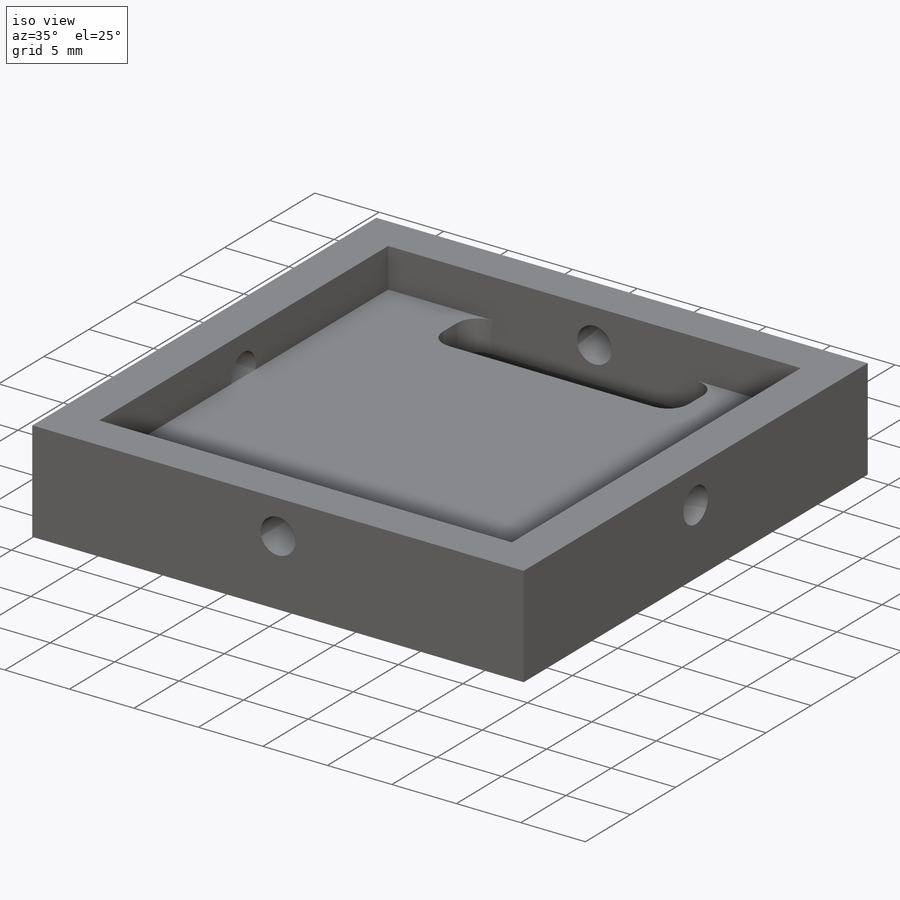
[diagram: iso view]
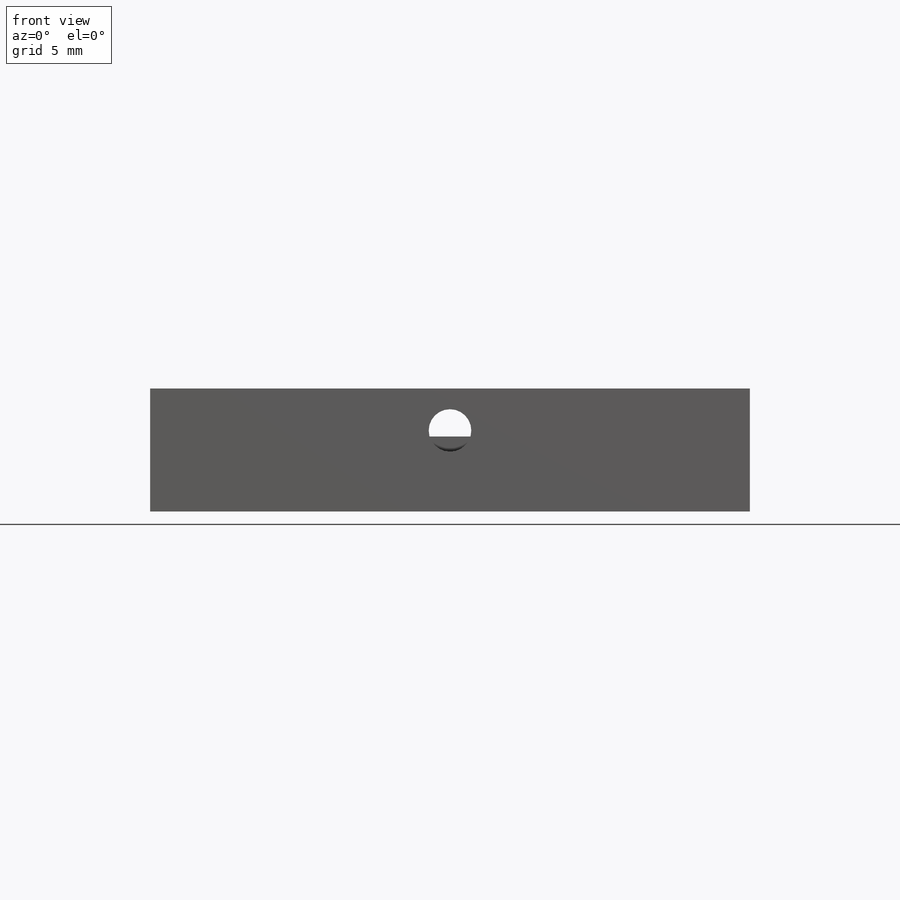
[diagram: front view]
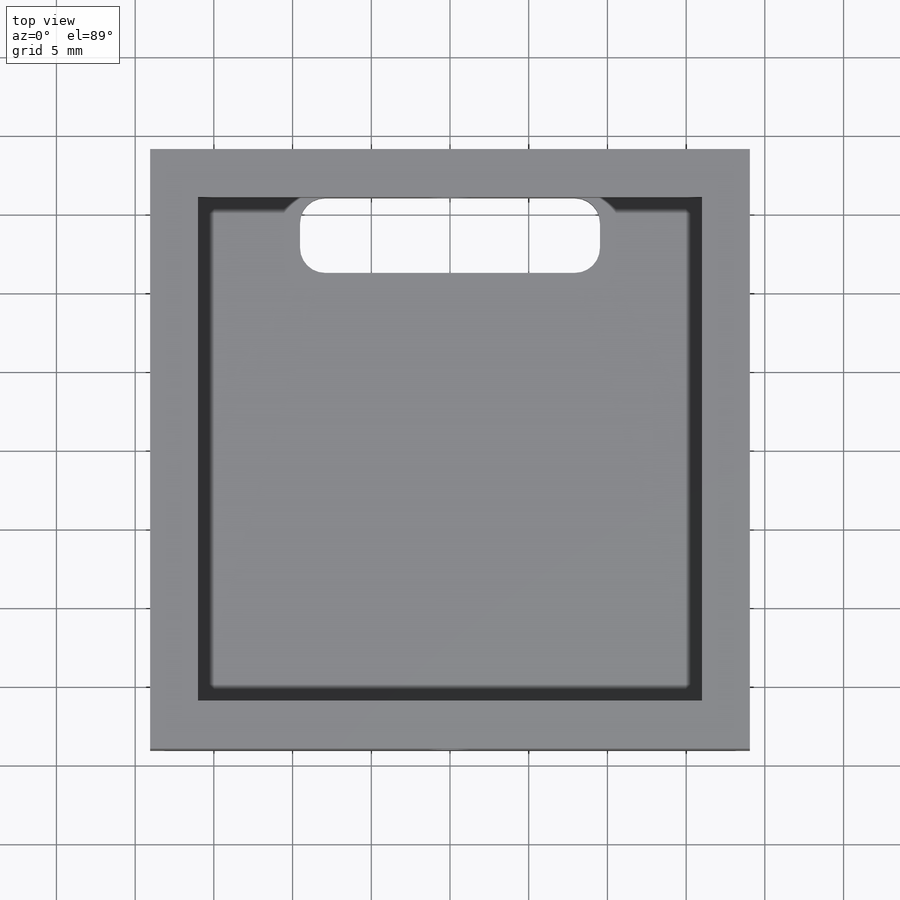
[diagram: top view]
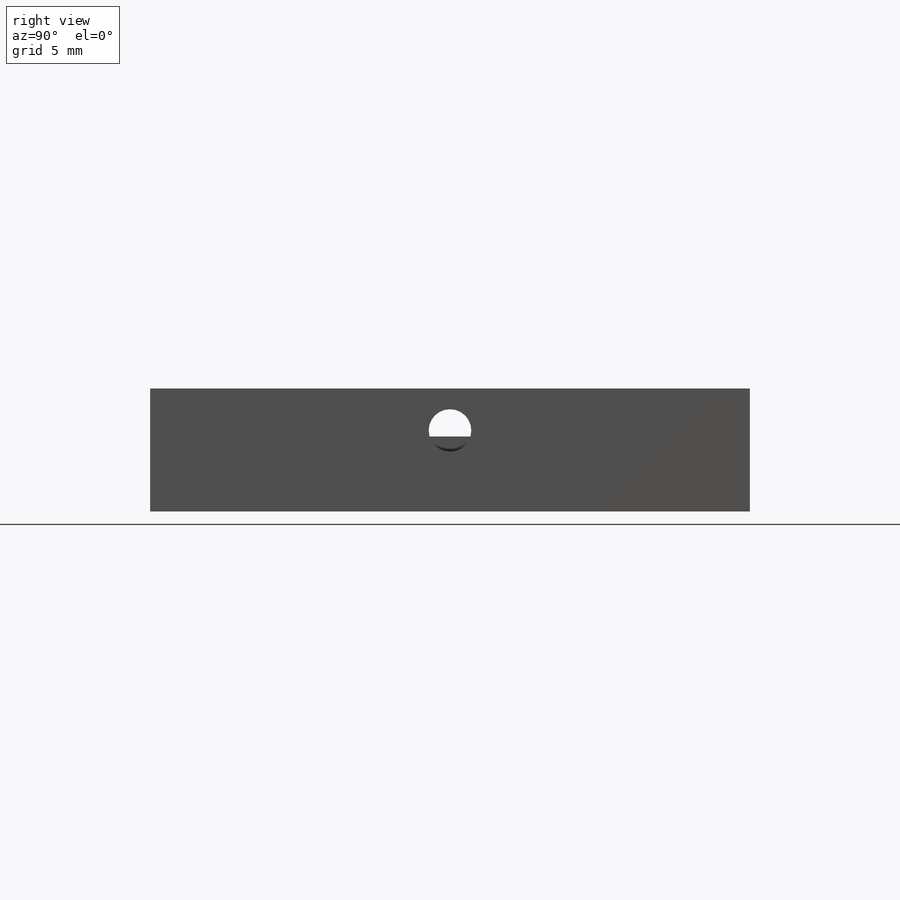
[diagram: right view]
SOLIDWORKS PART (.sldprt)
format: sldprt  version: not decoded by parser v0  size: 928,768 bytes
history: native  units: mm
features: sketch x20, fillet x20, cut_extrude x13, extrude x5, material x1, helix x1, sweep x1 (+12 scaffold rows collapsed)
feature tree (73):
  scaffold x12  (default folders/planes/origin — collapsed)
  material  "Material <not specified>"
  sketch  "Sketch1"  dims[D4=11.43mm D1=38.1mm D2=38.1mm D3=~2.38125mm D5=39.6875mm D6=39.6875mm]
  extrude  "Boss-Extrude1"  Depth=2.38125mm
  extrude  "Boss-Extrude3"  [1 undecoded]
  sketch  "Sketch1<4>"  dims[D1=88.9mm]
  sketch  "Sketch3"  dims[c1.D1=13.97mm c1.D2=11.557mm c2.D1=~2.38125mm]
  extrude  "Boss-Extrude4"  Depth=3.96748mm
  sketch  "Sketch4"
  extrude  "Boss-Extrude5"  Depth=4.7625mm
  sketch  "Sketch5"  dims[D1=3.048mm]
  extrude  "Boss-Extrude6"  Depth=3.048mm
  sketch  "Sketch7"  dims[D1=1.27mm D2=1.397mm D3=13.335mm]
  sketch  "Sketch8"
  helix  "Helix/Spiral1"  Pitch=17.78mm
  sweep  "Cut-Sweep7"
  sketch  "Sketch9"  dims[D1=19.05mm D2=6.477mm D3=4.7625mm]
  cut_extrude  "Cut-Extrude1"  [1 undecoded]
  sketch  "Sketch12"  dims[D1=2.7051mm D2=2.667mm]
  cut_extrude  "Cut-Extrude3"  Depth=3.048mm
  sketch  "Sketch13"  dims[c1.D2=2.7051mm c1.D1=2.667mm c2.D2=19.05mm]
  cut_extrude  "Cut-Extrude4"  Depth=3.048mm
  sketch  "Sketch14"  dims[D2=2.7051mm D1=2.667mm]
  cut_extrude  "Cut-Extrude5"  Depth=3.048mm
  sketch  "Sketch15"  dims[D2=2.7051mm D1=2.667mm]
  cut_extrude  "Cut-Extrude6"  Depth=3.048mm
  sketch  "Sketch16"  dims[c1.D1=~2.38125mm c1.D2=9.525mm c1.D3=9.525mm c1.D4=12.7mm c1.D5=29.3116mm c1.D6=4.7625mm c1.D7=4.7625mm c1.D8=4.7625mm c1.D9=~6.34365mm c2.D5=0.0mm]
  cut_extrude  "Cut-Extrude7"  [1 undecoded]
  sketch  "Sketch17"  dims[c1.D1=12.7mm c1.D2=29.3116mm c1.D3=4.7625mm c1.D4=4.7625mm c1.D5=4.7625mm c1.D6=~2.38125mm c1.D7=~2.38125mm c1.D8=9.525mm c1.D9=9.525mm c1.D10=9.525mm c2.D2=4.7625mm c2.D5=0.0mm]
  cut_extrude  "Cut-Extrude8"  [1 undecoded]
  sketch  "Sketch18"  dims[D1=1.0mm D2=19.05mm D3=9.525mm D4=4.2625mm]
  cut_extrude  "Cut-Extrude9"  [1 undecoded]
  fillet  "Fillet1"  Radius=1.5875mm
  sketch  "Sketch19"
  cut_extrude  "Cut-Extrude11"  [1 undecoded]
  sketch  "Sketch20"
  cut_extrude  "Cut-Extrude12"  [1 undecoded]
  fillet  "Fillet21"  Radius=0.79375mm
  fillet  "Fillet22"  Radius=0.79375mm
  fillet  "Fillet23"  Radius=0.79375mm
  fillet  "Fillet24"  Radius=0.79375mm
  fillet  "Fillet25"  Radius=0.79375mm
  fillet  "Fillet26"  Radius=0.79375mm
  fillet  "Fillet27"  Radius=0.79375mm
  fillet  "Fillet28"  Radius=0.79375mm
  fillet  "Fillet29"  Radius=0.79375mm
  fillet  "Fillet30"  Radius=0.79375mm
  fillet  "Fillet31"  Radius=0.79375mm
  fillet  "Fillet32"  Radius=0.79375mm
  fillet  "Fillet33"  Radius=0.79375mm
  fillet  "Fillet34"  Radius=0.79375mm
  fillet  "Fillet35"  Radius=0.79375mm
  fillet  "Fillet36"  Radius=0.79375mm
  fillet  "Fillet37"  Radius=0.79375mm
  fillet  "Fillet38"  Radius=0.79375mm
  fillet  "Fillet39"  Radius=0.79375mm
  sketch  "Sketch21"
  cut_extrude  "Cut-Extrude14"  [1 undecoded]
  sketch  "Sketch22"  dims[c1.D2=~1.389062mm c1.D3=~1.241495mm c1.D4=~1.389062mm c1.D1=~1.190625mm c2.D3=~1.190625mm]
  cut_extrude  "Cut-Extrude15"  Depth=1.389062mm
  sketch  "Sketch23"  dims[D1=~2.38125mm D2=~2.38125mm]
  cut_extrude  "Cut-Extrude16"  Depth=2.38125mm
decode coverage: 46 of 60 modeling features carry decoded parameters
note: ~ marks probable driven/reference dimensions
note: 8 parameter values undecoded
summary: no parameter record found for 8 features
note: suppression state not decoded; provenance and decode notes live in map.json
